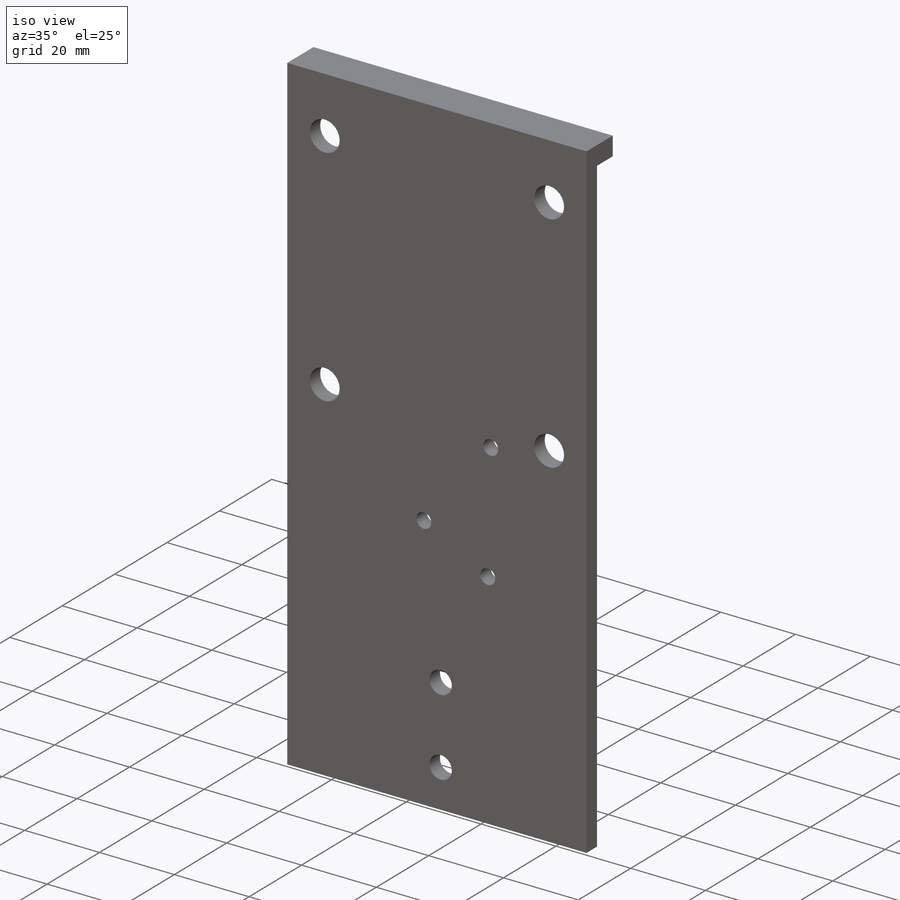
[diagram: iso view]
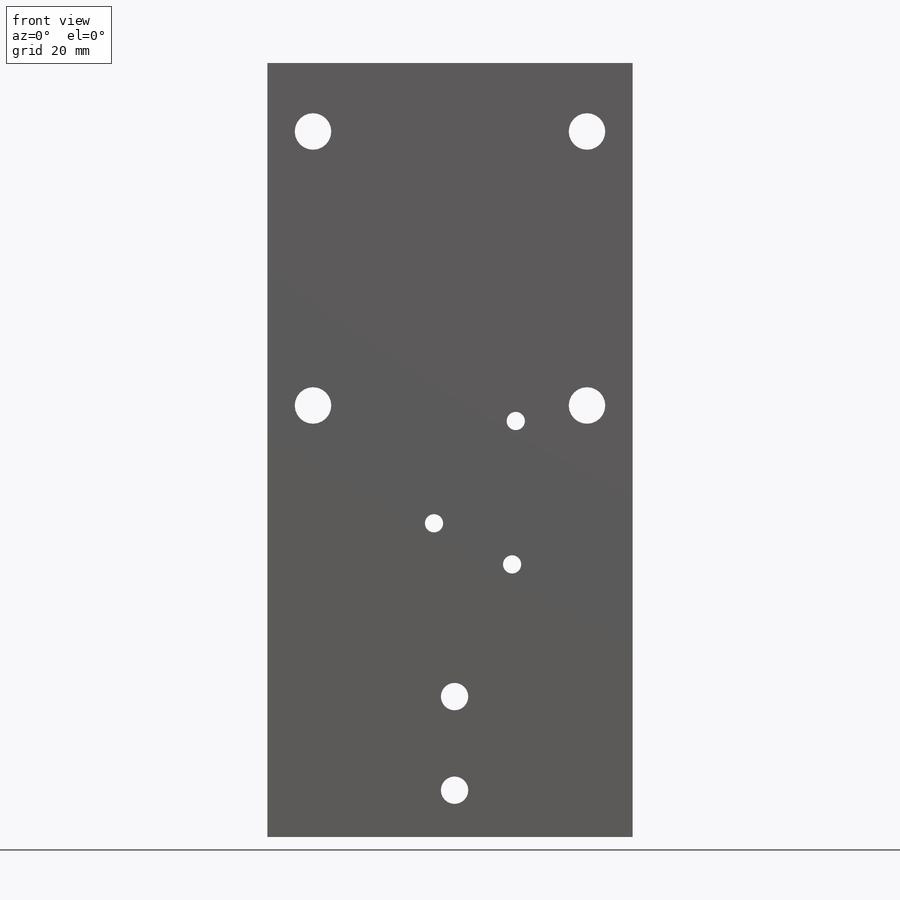
[diagram: front view]
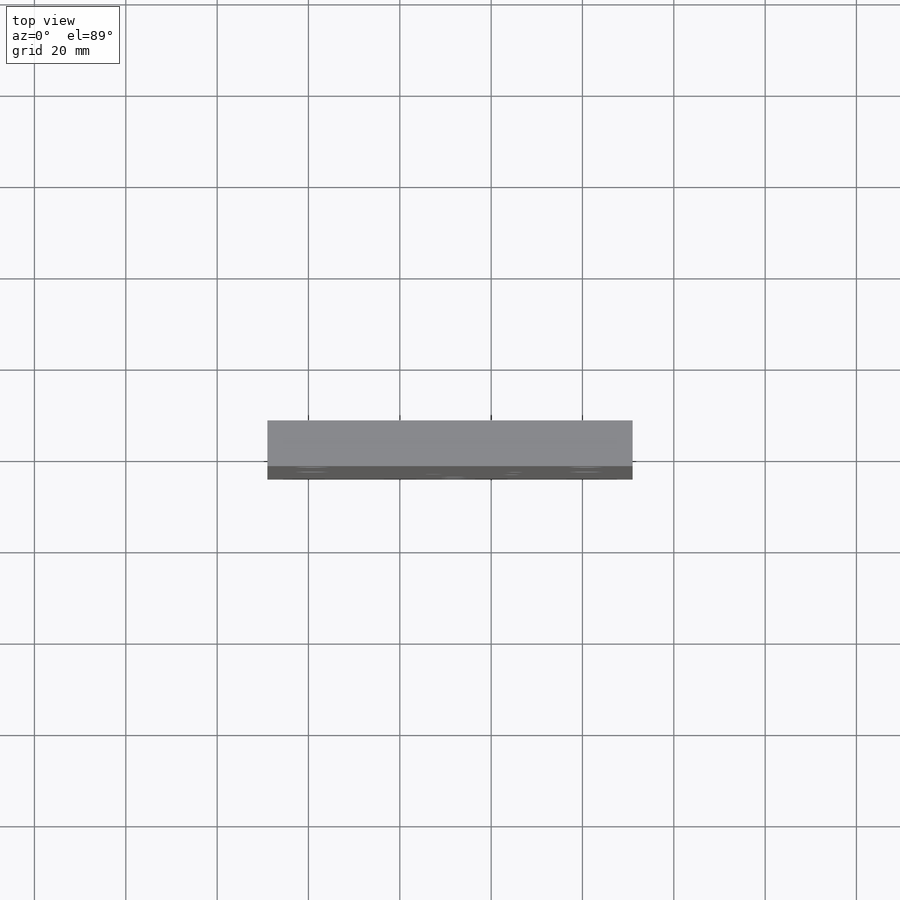
[diagram: top view]
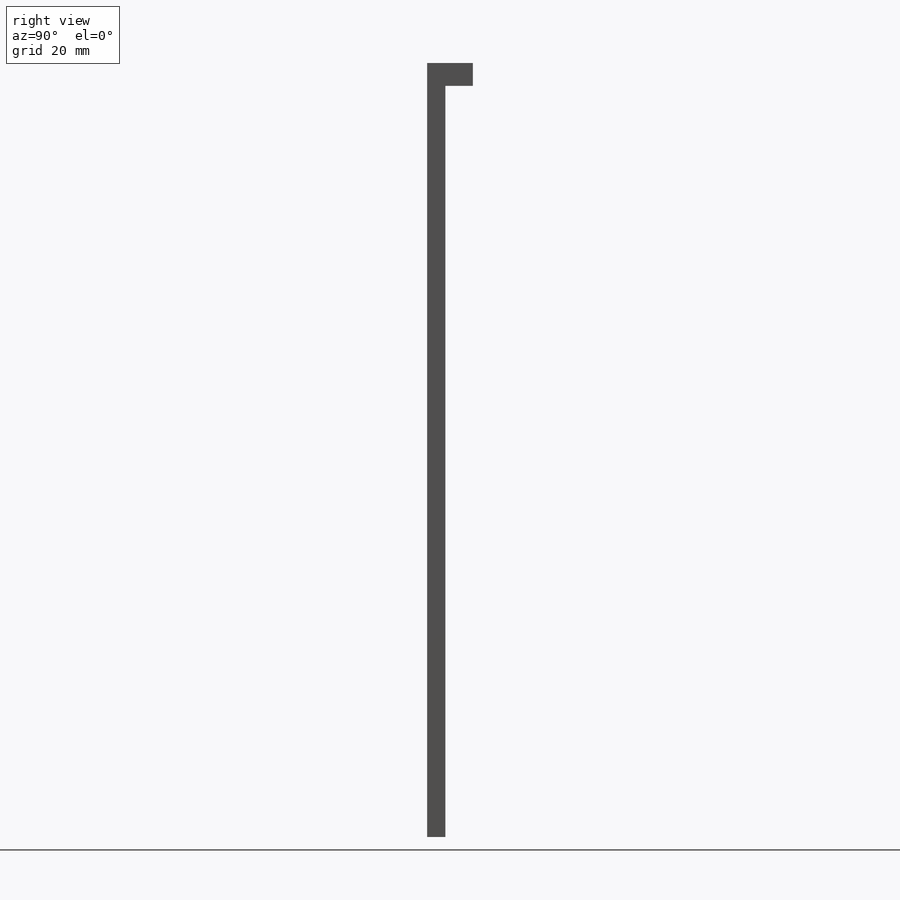
[diagram: right view]
SOLIDWORKS PART (.sldprt)
format: sldprt  version: not decoded by parser v0  size: 222,720 bytes
history: native  units: mm
features: sketch x5, plane x3, cut_extrude x3, extrude x2, material x1 (+10 scaffold rows collapsed)
feature tree (24):
  scaffold x10  (default folders/planes/origin — collapsed)
  material  "Matériau <non spécifié>"
  plane  "Plan de face"
  plane  "Plan de dessus"
  plane  "Plan de droite"
  sketch  "Esquisse1"  dims[D1=80.0mm D2=169.5mm]
  extrude  "Boss.-Extru.1"  Depth=4mm
  sketch  "Esquisse2"  dims[c1.D6=8.0mm c1.D7=8.0mm c1.D8=8.0mm c1.D9=8.0mm c1.D1=80.0mm c1.D2=15.0mm c1.D3=10.0mm c1.D4=10.0mm c1.D5=10.0mm c1.D10=60.0mm c2.D3=60.0mm]
  cut_extrude  "Enlèv. mat.-Extru.1"  [1 undecoded]
  sketch  "Esquisse5"  dims[D4=6.0mm D5=6.0mm D1=6.0mm D2=14.0mm D3=7.0mm D6=20.5mm D7=10.25mm]
  cut_extrude  "Enlèv. mat.-Extru.2"  [1 undecoded]
  sketch  "Esquisse6"  dims[D1=5.0mm]
  extrude  "Boss.-Extru.2"  Depth=6mm
  sketch  "Esquisse7"  dims[c1.D5=4.0mm c1.D6=4.0mm c1.D7=4.0mm c1.D9=4.0mm c1.D10=4.0mm c1.D11=4.0mm c1.D12=4.0mm c1.D13=4.0mm c2.D9=4.0mm c2.D10=4.0mm c2.D11=4.0mm c2.D12=4.0mm c2.D13=4.0mm c2.D1=40.0mm c2.D2=37.0mm c2.D3=55.0mm c2.D4=21.5mm c2.D8=15.0mm c3.D9=13.7mm c3.D10=3.9mm c3.D11=4.1mm c3.D12=4.9mm c3.D13=4.7mm c3.D14=36.5mm c3.D8=36.5mm c4.D9=68.7mm c4.D10=26.4mm c4.D11=59.7mm c4.D12=78.4mm c4.D13=25.6mm]
  cut_extrude  "Enlèv. mat.-Extru.5"  [1 undecoded]
decode coverage: 7 of 10 modeling features carry decoded parameters
note: 3 parameter values undecoded
summary: no parameter record found for 3 features
note: suppression state not decoded; provenance and decode notes live in map.json
